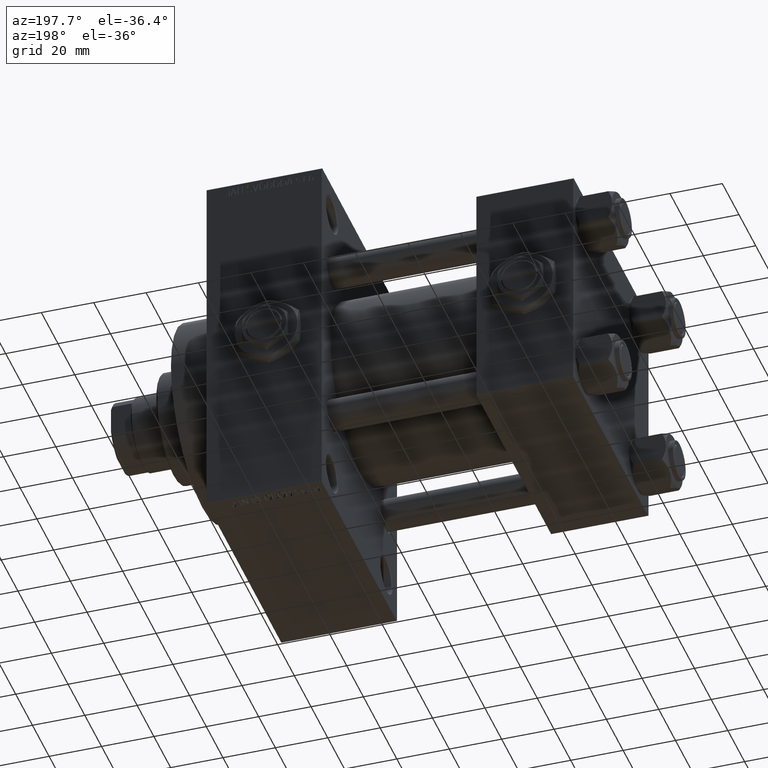
[diagram: clean part render]
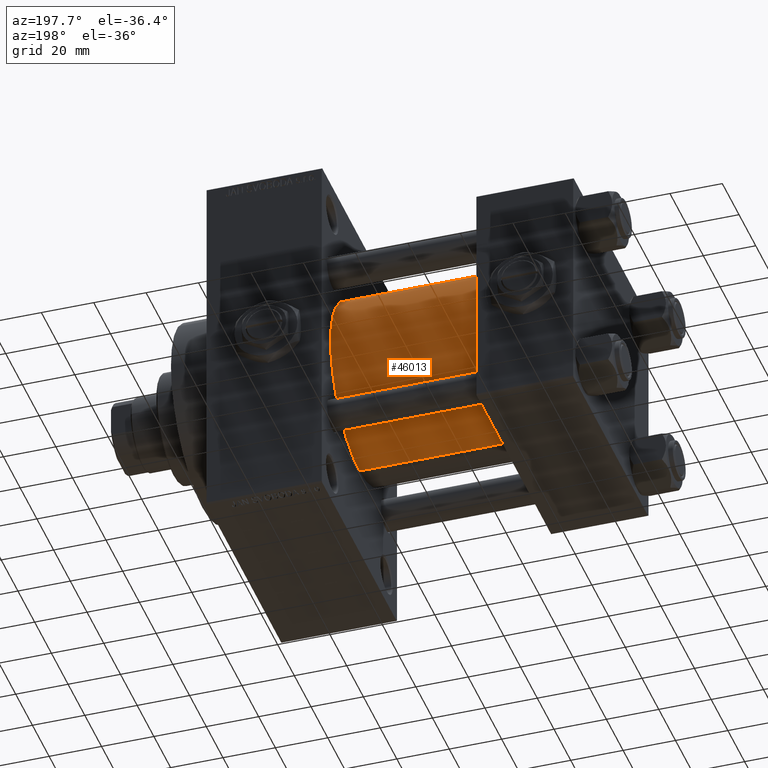
[diagram: same view with one face highlighted and labeled with its STEP entity id]
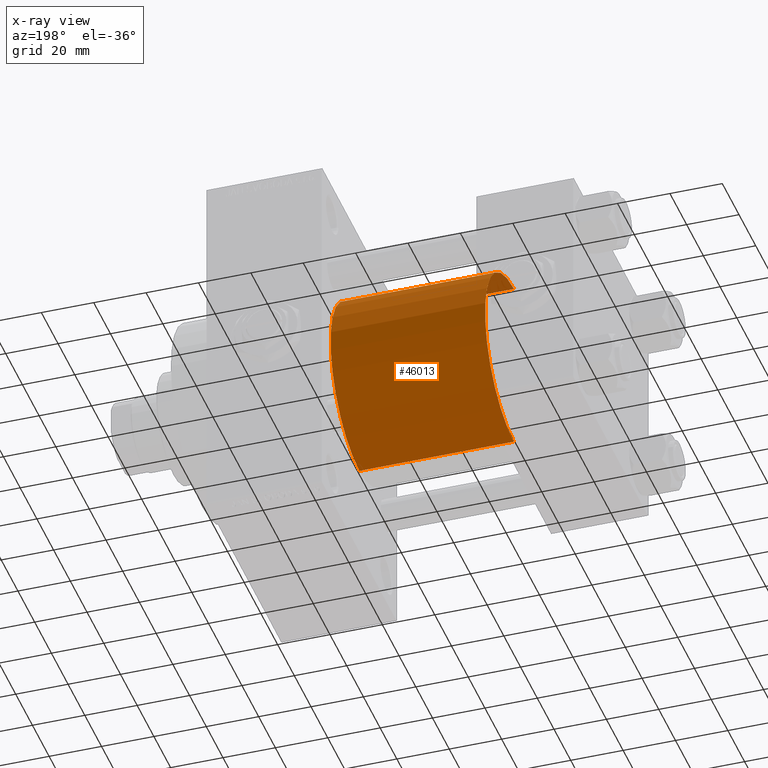
[diagram: x-ray of the same camera — body ghosted, the highlighted face saturated]
A machine part, auxiliary view. The second image highlights one B-rep face of the part: STEP entity #46013.
The next image is the same camera in x-ray: the body ghosted, the highlighted face saturated — about 1% of this face is hidden behind the body in this view.
In plain terms, the highlighted cylindrical surface (partial cylindrical patch) has radius 34.5 mm, axis along (-1, -0, -0).
Its self-contained STEP definition (entity closure, byte-faithful):
#57 = DIRECTION ( 'NONE',  ( 0.000000000000000000, 0.000000000000000000, -1.000000000000000000 ) ) ;
#2230 = DIRECTION ( 'NONE',  ( 0.000000000000000000, 0.000000000000000000, 1.000000000000000000 ) ) ;
#2985 = AXIS2_PLACEMENT_3D ( 'NONE', #34213, #19514, #57 ) ;
#3684 = LINE ( 'NONE', #43894, #15329 ) ;
#5657 = VERTEX_POINT ( 'NONE', #25101 ) ;
#5974 = CARTESIAN_POINT ( 'NONE',  ( 37.00000000000000000, -2.602085213965210642E-15, 0.000000000000000000 ) ) ;
#6518 = CIRCLE ( 'NONE', #43127, 34.50000000000000000 ) ;
#7952 = LINE ( 'NONE', #31138, #47847 ) ;
#8457 = DIRECTION ( 'NONE',  ( -1.000000000000000000, -0.000000000000000000, -0.000000000000000000 ) ) ;
#9614 = CARTESIAN_POINT ( 'NONE',  ( 96.00000000000000000, -2.602085213965210642E-15, 34.50000000000000000 ) ) ;
#10579 = ORIENTED_EDGE ( 'NONE', *, *, #46587, .T. ) ;
#10985 = CARTESIAN_POINT ( 'NONE',  ( 37.00000000000000000, 1.622946243093158675E-15, -34.50000000000000000 ) ) ;
#13056 = DIRECTION ( 'NONE',  ( 0.000000000000000000, 0.000000000000000000, 1.000000000000000000 ) ) ;
#13298 = CARTESIAN_POINT ( 'NONE',  ( 96.00000000000000000, -2.602085213965210642E-15, 0.000000000000000000 ) ) ;
#13312 = VERTEX_POINT ( 'NONE', #9614 ) ;
#14040 = CYLINDRICAL_SURFACE ( 'NONE', #17623, 34.50000000000000000 ) ;
#14142 = VERTEX_POINT ( 'NONE', #10985 ) ;
#15329 = VECTOR ( 'NONE', #26627, 1000.000000000000000 ) ;
#16093 = EDGE_CURVE ( 'NONE', #14142, #5657, #6518, .T. ) ;
#17623 = AXIS2_PLACEMENT_3D ( 'NONE', #13298, #48178, #13056 ) ;
#19514 = DIRECTION ( 'NONE',  ( 1.000000000000000000, 0.000000000000000000, 0.000000000000000000 ) ) ;
#21188 = DIRECTION ( 'NONE',  ( 1.000000000000000000, -0.000000000000000000, 0.000000000000000000 ) ) ;
#25101 = CARTESIAN_POINT ( 'NONE',  ( 37.00000000000000000, -2.602085213965210642E-15, 34.50000000000000000 ) ) ;
#26627 = DIRECTION ( 'NONE',  ( -1.000000000000000000, -0.000000000000000000, -0.000000000000000000 ) ) ;
#26745 = EDGE_LOOP ( 'NONE', ( #40487, #10579, #47218, #36438 ) ) ;
#28450 = CIRCLE ( 'NONE', #2985, 34.50000000000000000 ) ;
#30697 = CARTESIAN_POINT ( 'NONE',  ( 96.00000000000000000, 1.622946243093158675E-15, -34.50000000000000000 ) ) ;
#31138 = CARTESIAN_POINT ( 'NONE',  ( 96.00000000000000000, 1.622946243093158675E-15, -34.50000000000000000 ) ) ;
#34213 = CARTESIAN_POINT ( 'NONE',  ( 96.00000000000000000, -2.602085213965210642E-15, 0.000000000000000000 ) ) ;
#35072 = VERTEX_POINT ( 'NONE', #30697 ) ;
#36438 = ORIENTED_EDGE ( 'NONE', *, *, #48898, .F. ) ;
#36520 = EDGE_CURVE ( 'NONE', #35072, #13312, #28450, .T. ) ;
#40487 = ORIENTED_EDGE ( 'NONE', *, *, #36520, .F. ) ;
#43127 = AXIS2_PLACEMENT_3D ( 'NONE', #5974, #21188, #2230 ) ;
#43894 = CARTESIAN_POINT ( 'NONE',  ( 96.00000000000000000, -2.602085213965210642E-15, 34.50000000000000000 ) ) ;
#46013 = ADVANCED_FACE ( 'NONE', ( #47441 ), #14040, .T. ) ;
#46587 = EDGE_CURVE ( 'NONE', #35072, #14142, #7952, .T. ) ;
#47218 = ORIENTED_EDGE ( 'NONE', *, *, #16093, .T. ) ;
#47441 = FACE_OUTER_BOUND ( 'NONE', #26745, .T. ) ;
#47847 = VECTOR ( 'NONE', #8457, 1000.000000000000000 ) ;
#48178 = DIRECTION ( 'NONE',  ( -1.000000000000000000, -0.000000000000000000, -0.000000000000000000 ) ) ;
#48898 = EDGE_CURVE ( 'NONE', #13312, #5657, #3684, .T. ) ;